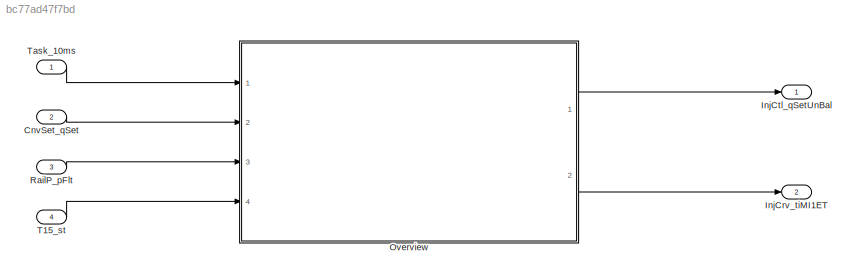
MODEL slx_bc77ad47f7bd
KIND model
CONFIG AbsTol = auto
CONFIG EnableMultiTasking = off
CONFIG FixedStep = auto
CONFIG MaxStep = auto
CONFIG MinStep = auto
CONFIG RelTol = 1e-3
CONFIG SampleTimeConstraint = Unconstrained
CONFIG SolverName = VariableStepAuto
CONFIG StartTime = 0.0
CONFIG StopTime = 10.0
BLOCK [Inport] CnvSet_qSet
  Port = 2
BLOCK [Outport] InjCrv_tiMI1ET
  Port = 2
  VectorParamsAs1DForOutWhenUnconnected = off
BLOCK [Outport] InjCtl_qSetUnBal
  VectorParamsAs1DForOutWhenUnconnected = off
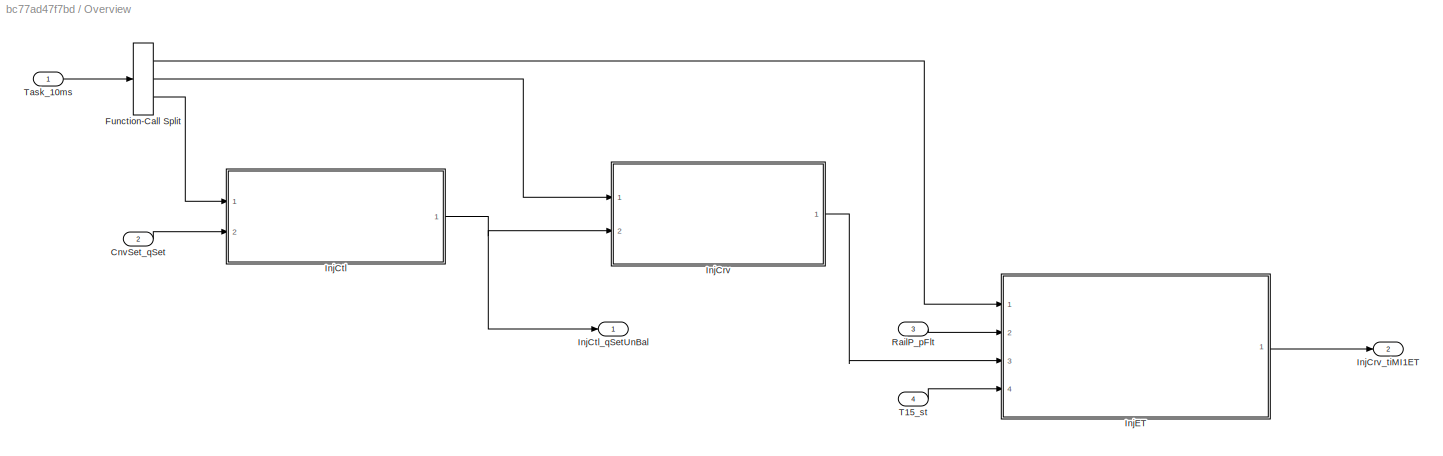
BLOCK [SubSystem] Overview
  Ports = [4, 2]
  RequestExecContextInheritance = off
BLOCK [Inport] Overview/CnvSet_qSet
  Port = 2
BLOCK [FunctionCallSplit] Overview/Function-Call Split
  IconShape = distinctive
  NumOutputPorts = 3
  OutputPortLayout = default
  Ports = [1, 3]
BLOCK [ModelReference] Overview/InjCrv
  ModelNameDialog = InjCrv
  ModelReferenceVersion = 1.4
  Ports = [2, 1]
  ScheduleRates = on
BLOCK [Outport] Overview/InjCrv_tiMI1ET
  Port = 2
  VectorParamsAs1DForOutWhenUnconnected = off
BLOCK [ModelReference] Overview/InjCtl
  ModelNameDialog = InjCtl
  ModelReferenceVersion = 1.9
  Ports = [2, 1]
  ScheduleRates = on
BLOCK [Outport] Overview/InjCtl_qSetUnBal
  VectorParamsAs1DForOutWhenUnconnected = off
BLOCK [ModelReference] Overview/InjET
  ModelNameDialog = InjET
  ModelReferenceVersion = 1.6
  Ports = [4, 1]
  ScheduleRates = on
BLOCK [Inport] Overview/RailP_pFlt
  Port = 3
BLOCK [Inport] Overview/T15_st
  Port = 4
BLOCK [Inport] Overview/Task_10ms
BLOCK [Inport] RailP_pFlt
  Port = 3
BLOCK [Inport] T15_st
  Port = 4
BLOCK [Inport] Task_10ms
  OutputFunctionCall = on
LINE CnvSet_qSet:1 -> Overview:2
LINE Overview/CnvSet_qSet:1 -> Overview/InjCtl:2
LINE Overview/Function-Call Split:1 -> Overview/InjET:1
LINE Overview/Function-Call Split:2 -> Overview/InjCrv:1
LINE Overview/Function-Call Split:3 -> Overview/InjCtl:1
LINE Overview/InjCrv:1 -> Overview/InjET:3
NET Overview/InjCtl:1 -> Overview/InjCrv:2, Overview/InjCtl_qSetUnBal:1
LINE Overview/InjET:1 -> Overview/InjCrv_tiMI1ET:1
LINE Overview/RailP_pFlt:1 -> Overview/InjET:2
LINE Overview/T15_st:1 -> Overview/InjET:4
LINE Overview/Task_10ms:1 -> Overview/Function-Call Split:1
LINE Overview:1 -> InjCtl_qSetUnBal:1
LINE Overview:2 -> InjCrv_tiMI1ET:1
LINE RailP_pFlt:1 -> Overview:3
LINE T15_st:1 -> Overview:4
LINE Task_10ms:1 -> Overview:1
note: NET lines group one-source signal fan-out (src -> all destinations, sorted); 1:1 wires keep LINE
